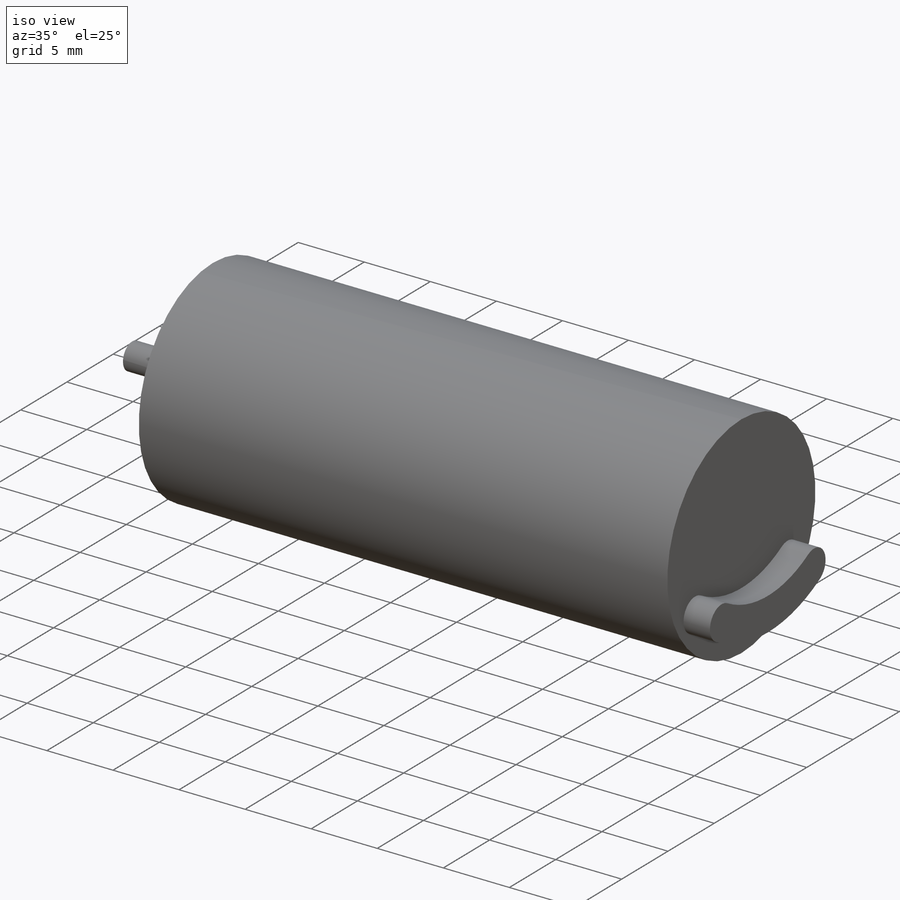
[diagram: iso view]
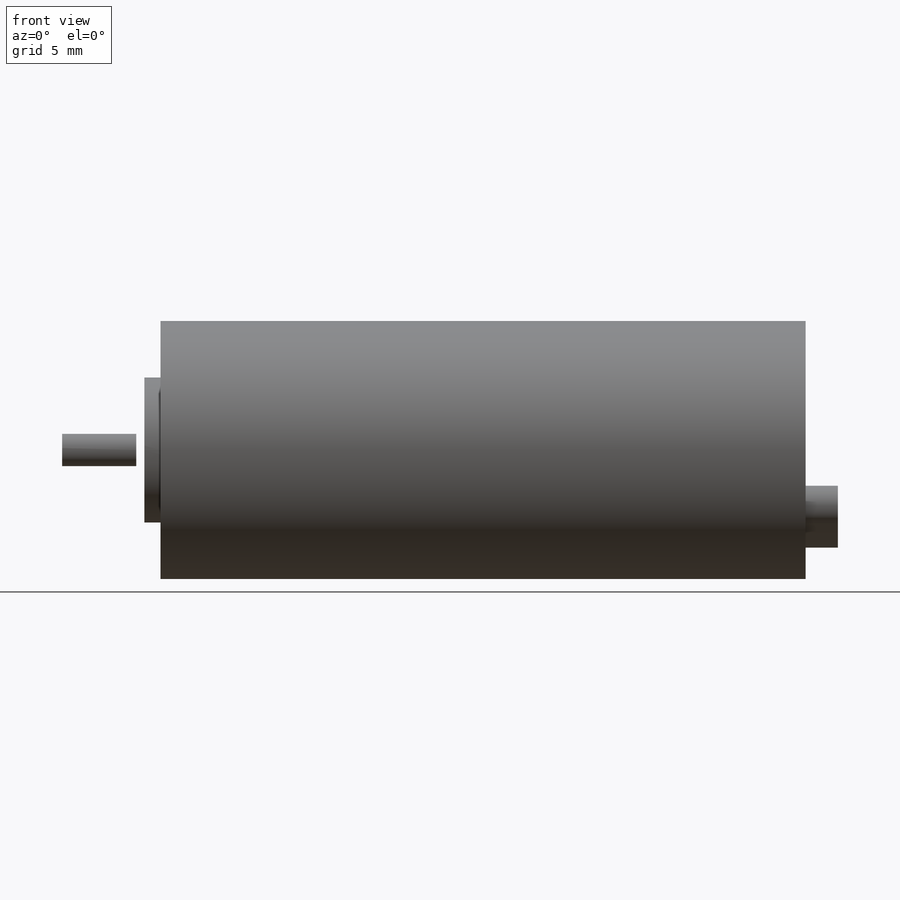
[diagram: front view]
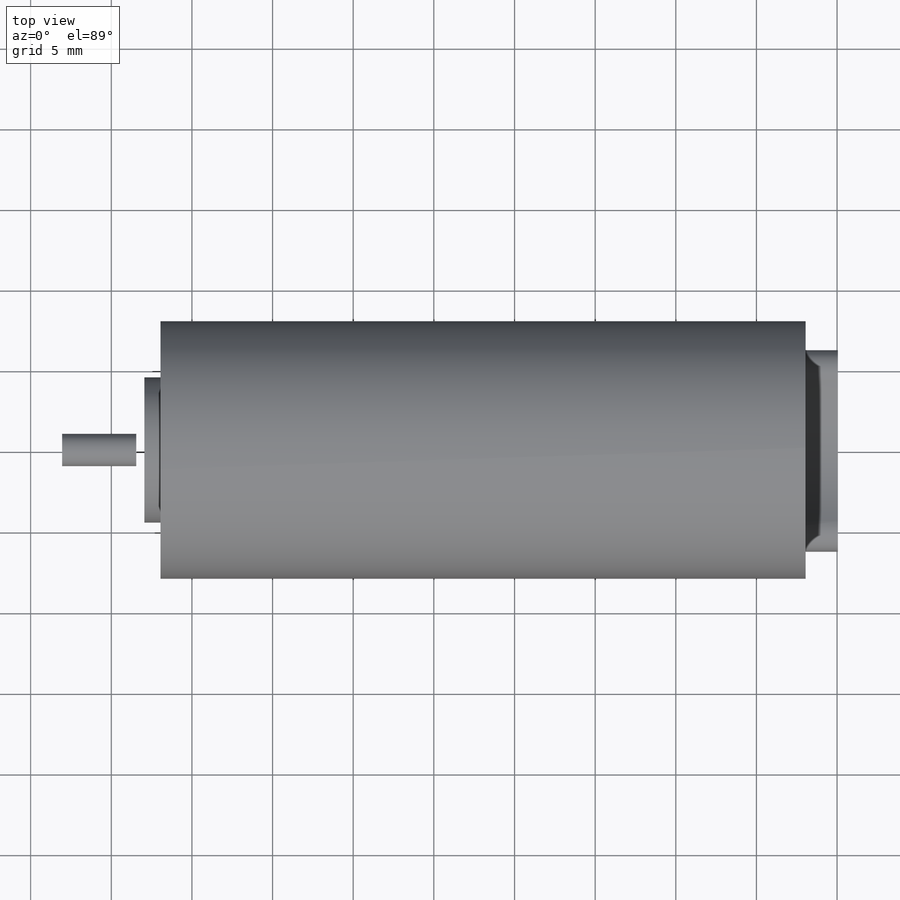
[diagram: top view]
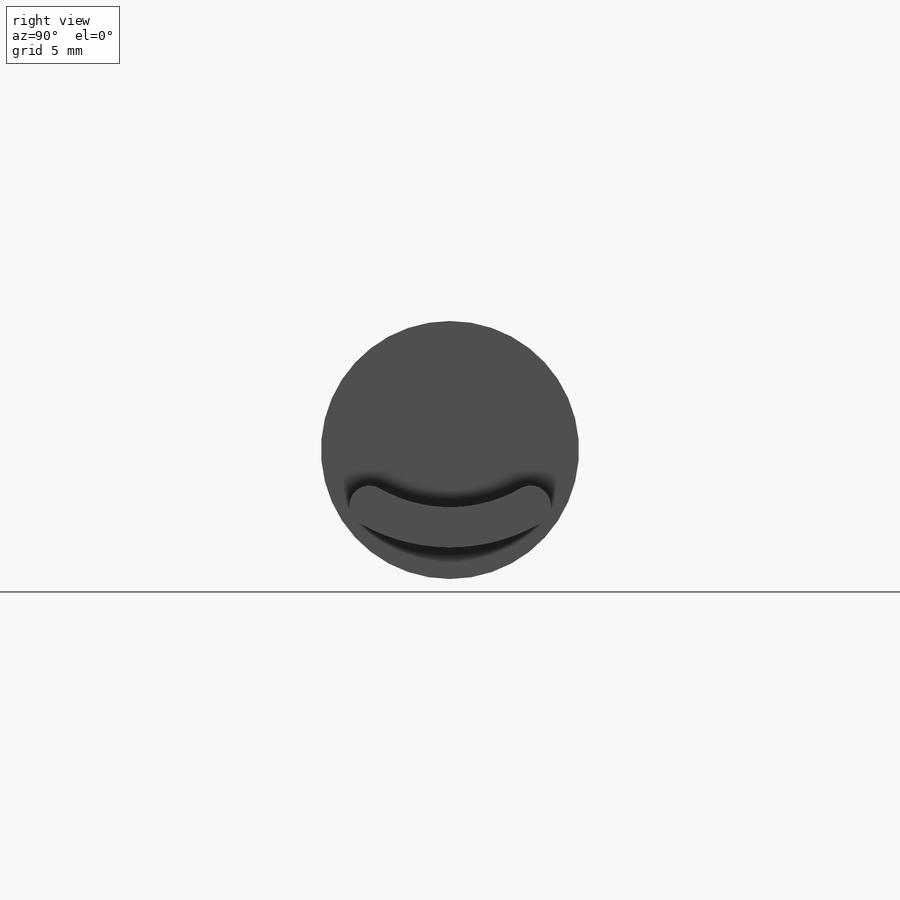
[diagram: right view]
SOLIDWORKS PART (.sldprt)
format: sldprt  version: not decoded by parser v0  size: 178,688 bytes
history: native  units: mm
features: sketch x8, revolve x2, plane x2, extrude x2, hole x2, material x1 (+13 scaffold rows collapsed)
feature tree (30):
  scaffold x13  (default folders/planes/origin — collapsed)
  material  "Material <not specified>"
  sketch  "Sketch9"
  revolve  "Revolve2"  Angle=360deg
  sketch  "Sketch11"
  revolve  "Revolve3"  Angle=360deg
  plane  "Plane1"
  sketch  "Sketch15"
  extrude  "Boss-Extrude3"  Depth=2mm
  plane  "Plane2"
  sketch  "Sketch20"
  extrude  "Boss-Extrude4"  Depth=1mm
  hole  "Ø7.0 (7) Diameter Hole2"  Diameter=7mm Depth=0.5mm
  sketch  "Sketch22"
  sketch  "Sketch21"  dims[hole-wizard template sketch: 46 standard entries collapsed; hole parameters kept: c15.Hole Dia.=7.0mm c15.Hole Depth=0.5mm c15.D3=~14.816244mm c15.Drill Angle=180.0deg]
  hole  "Hole2"  Diameter=1.567mm Depth=3.5mm
  sketch  "Sketch24"
  sketch  "Sketch23"  dims[Diameter=1.567mm Depth=3.5mm]
decode coverage: 8 of 14 modeling features carry decoded parameters
note: ~ marks probable driven/reference dimensions
note: suppression state not decoded; provenance and decode notes live in map.json
